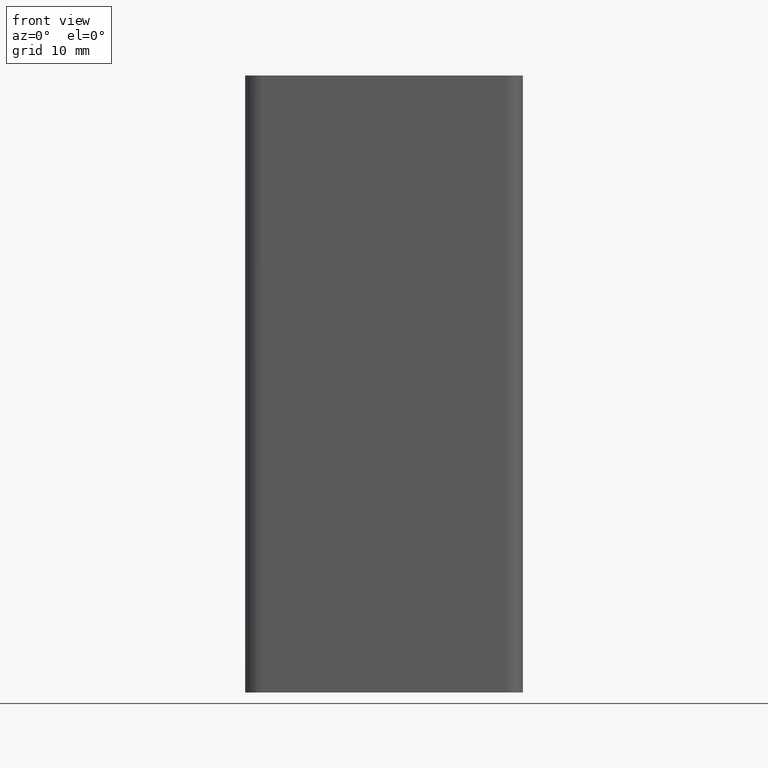
[diagram: clean part render]
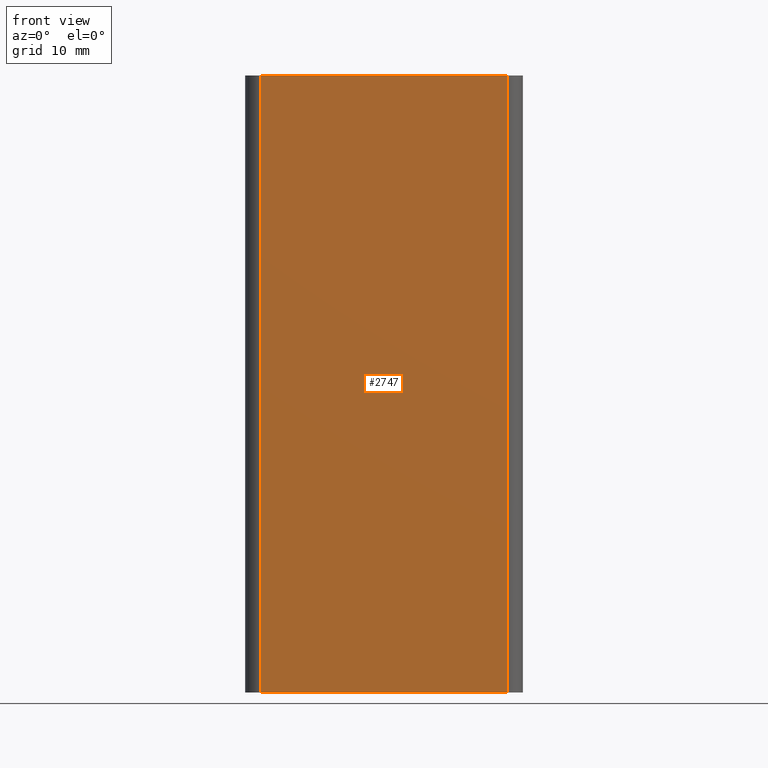
[diagram: same view with one face highlighted and labeled with its STEP entity id]
A machine part, front view. The second image highlights one B-rep face of the part: STEP entity #2747.
In plain terms, the highlighted planar face has unit normal (0, -1, 0).
Its self-contained STEP definition (entity closure, byte-faithful):
#86=PLANE('',#3036);
#221=FACE_OUTER_BOUND('',#366,.T.);
#366=EDGE_LOOP('',(#2377,#2378,#2379,#2380));
#623=LINE('',#4664,#879);
#627=LINE('',#4677,#883);
#628=LINE('',#4681,#884);
#629=LINE('',#4682,#885);
#879=VECTOR('',#3839,40.);
#883=VECTOR('',#3851,100.);
#884=VECTOR('',#3856,100.);
#885=VECTOR('',#3857,40.);
#1305=VERTEX_POINT('',#4661);
#1306=VERTEX_POINT('',#4663);
#1311=VERTEX_POINT('',#4676);
#1312=VERTEX_POINT('',#4680);
#1704=EDGE_CURVE('',#1306,#1305,#623,.T.);
#1711=EDGE_CURVE('',#1311,#1306,#627,.T.);
#1713=EDGE_CURVE('',#1312,#1305,#628,.T.);
#1714=EDGE_CURVE('',#1311,#1312,#629,.T.);
#2377=ORIENTED_EDGE('',*,*,#1704,.T.);
#2378=ORIENTED_EDGE('',*,*,#1713,.F.);
#2379=ORIENTED_EDGE('',*,*,#1714,.F.);
#2380=ORIENTED_EDGE('',*,*,#1711,.T.);
#2747=ADVANCED_FACE('',(#221),#86,.T.);
#3036=AXIS2_PLACEMENT_3D('',#4679,#3854,#3855);
#3839=DIRECTION('',(-1.,0.,0.));
#3851=DIRECTION('',(0.,0.,1.));
#3854=DIRECTION('center_axis',(0.,-1.,0.));
#3855=DIRECTION('ref_axis',(1.,0.,0.));
#3856=DIRECTION('',(0.,0.,1.));
#3857=DIRECTION('',(-1.,0.,0.));
#4661=CARTESIAN_POINT('',(-20.,-22.5,100.));
#4663=CARTESIAN_POINT('',(20.,-22.5,100.));
#4664=CARTESIAN_POINT('',(-10.,-22.5,100.));
#4676=CARTESIAN_POINT('',(20.,-22.5,0.));
#4677=CARTESIAN_POINT('',(20.,-22.5,0.));
#4679=CARTESIAN_POINT('Origin',(-20.,-22.5,0.));
#4680=CARTESIAN_POINT('',(-20.,-22.5,0.));
#4681=CARTESIAN_POINT('',(-20.,-22.5,0.));
#4682=CARTESIAN_POINT('',(-10.,-22.5,0.));